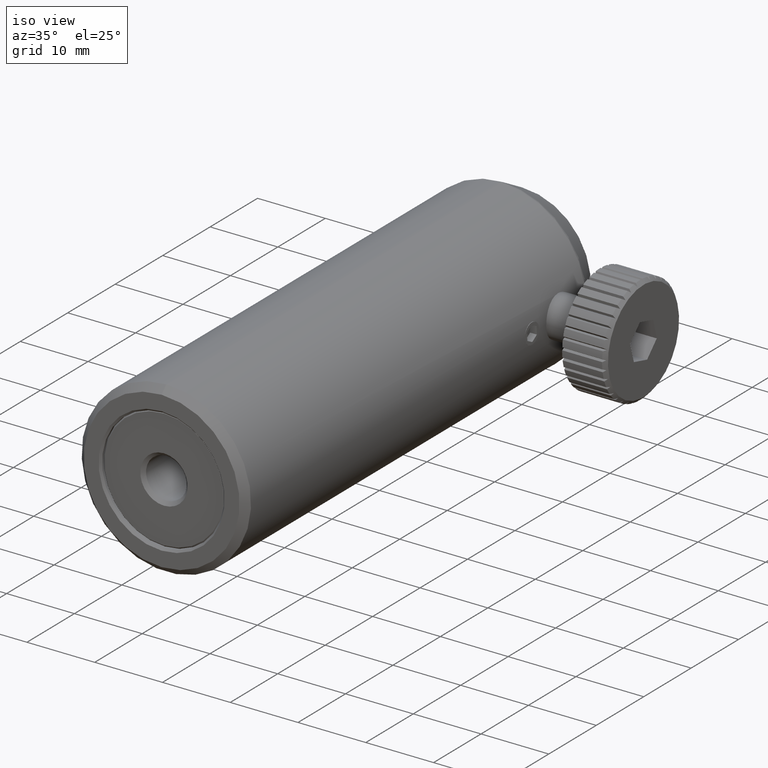
[diagram: clean part render]
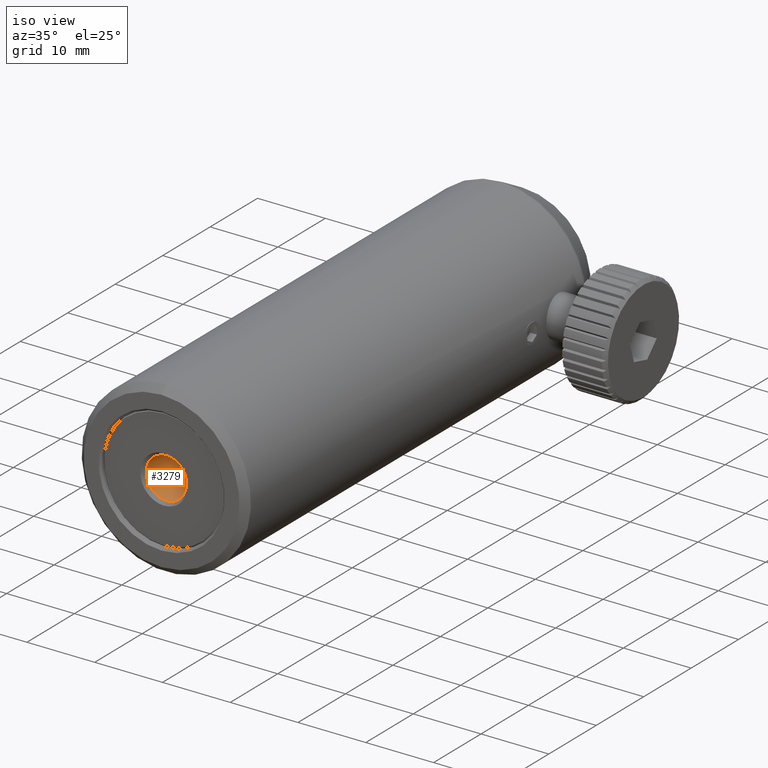
[diagram: same view with one face highlighted and labeled with its STEP entity id]
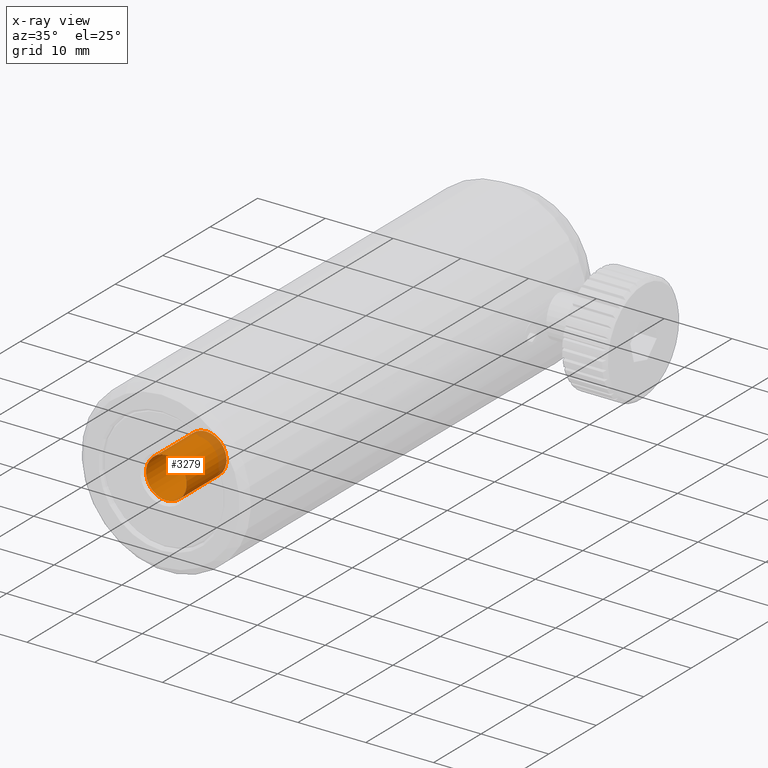
[diagram: x-ray of the same camera — body ghosted, the highlighted face saturated]
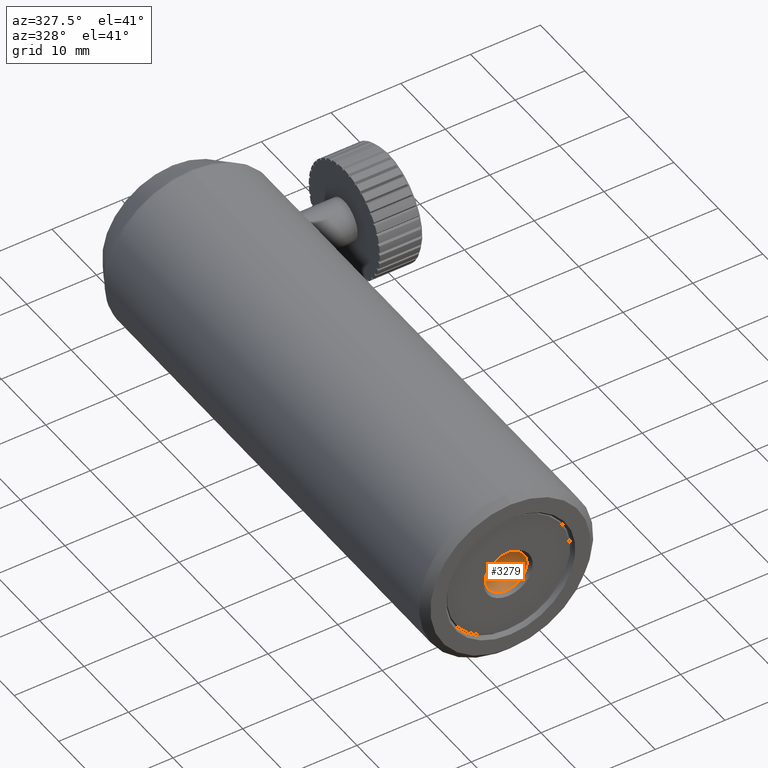
[diagram: same view with one face highlighted and labeled with its STEP entity id]
A machine part, iso view. The second image highlights one B-rep face of the part: STEP entity #3279.
The next image is the same camera in x-ray: the body ghosted, the highlighted face saturated — about 11% of this face is hidden behind the body in this view.
A second angle (auxiliary view) of the same face is appended — the face is thin or edge-on in the first view.
In plain terms, the highlighted cylindrical surface (bore or boss wall) has radius 3 mm, axis along (-0, 1, -0).
Its self-contained STEP definition (entity closure, byte-faithful):
#516 = CIRCLE ( 'NONE', #3713, 2.999999999999998200 ) ;
#517 = CIRCLE ( 'NONE', #3714, 2.999999999999998200 ) ;
#1243 = CARTESIAN_POINT ( 'NONE',  ( -6.149801035848841300, 2.287555402619321700, 2.999999999999998200 ) ) ;
#1244 = CARTESIAN_POINT ( 'NONE',  ( -6.149801035848841300, -6.112444597380672900, 2.999999999999998200 ) ) ;
#1339 = CARTESIAN_POINT ( 'NONE',  ( -6.149801035848841300, 2.287555402619321700, 0.0000000000000000000 ) ) ;
#1340 = DIRECTION ( 'NONE',  ( 0.0000000000000000000, 1.000000000000000000, 0.0000000000000000000 ) ) ;
#1341 = DIRECTION ( 'NONE',  ( 0.0000000000000000000, 0.0000000000000000000, 1.000000000000000000 ) ) ;
#1342 = CARTESIAN_POINT ( 'NONE',  ( -6.149801035848841300, -6.112444597380672900, 0.0000000000000000000 ) ) ;
#1343 = DIRECTION ( 'NONE',  ( -0.0000000000000000000, -1.000000000000000000, -0.0000000000000000000 ) ) ;
#1344 = DIRECTION ( 'NONE',  ( 0.0000000000000000000, 0.0000000000000000000, 1.000000000000000000 ) ) ;
#1796 = ORIENTED_EDGE ( 'NONE', *, *, #2173, .T. ) ;
#1797 = ORIENTED_EDGE ( 'NONE', *, *, #2174, .T. ) ;
#2173 = EDGE_CURVE ( 'NONE', #2547, #2547, #516, .T. ) ;
#2174 = EDGE_CURVE ( 'NONE', #2558, #2558, #517, .T. ) ;
#2295 = AXIS2_PLACEMENT_3D ( 'NONE', #4082, #4083, #4081 ) ;
#2547 = VERTEX_POINT ( 'NONE', #1243 ) ;
#2558 = VERTEX_POINT ( 'NONE', #1244 ) ;
#3279 = ADVANCED_FACE ( 'NONE', ( #3598, #3601 ), #3608, .F. ) ;
#3598 = FACE_OUTER_BOUND ( 'NONE', #4782, .T. ) ;
#3601 = FACE_OUTER_BOUND ( 'NONE', #4787, .T. ) ;
#3608 = CYLINDRICAL_SURFACE ( 'NONE', #2295, 2.999999999999998200 ) ;
#3713 = AXIS2_PLACEMENT_3D ( 'NONE', #1339, #1340, #1341 ) ;
#3714 = AXIS2_PLACEMENT_3D ( 'NONE', #1342, #1343, #1344 ) ;
#4081 = DIRECTION ( 'NONE',  ( 0.0000000000000000000, 0.0000000000000000000, 1.000000000000000000 ) ) ;
#4082 = CARTESIAN_POINT ( 'NONE',  ( -6.149801035848841300, 2.787555402619325700, 0.0000000000000000000 ) ) ;
#4083 = DIRECTION ( 'NONE',  ( -0.0000000000000000000, 1.000000000000000000, -0.0000000000000000000 ) ) ;
#4782 = EDGE_LOOP ( 'NONE', ( #1796 ) ) ;
#4787 = EDGE_LOOP ( 'NONE', ( #1797 ) ) ;